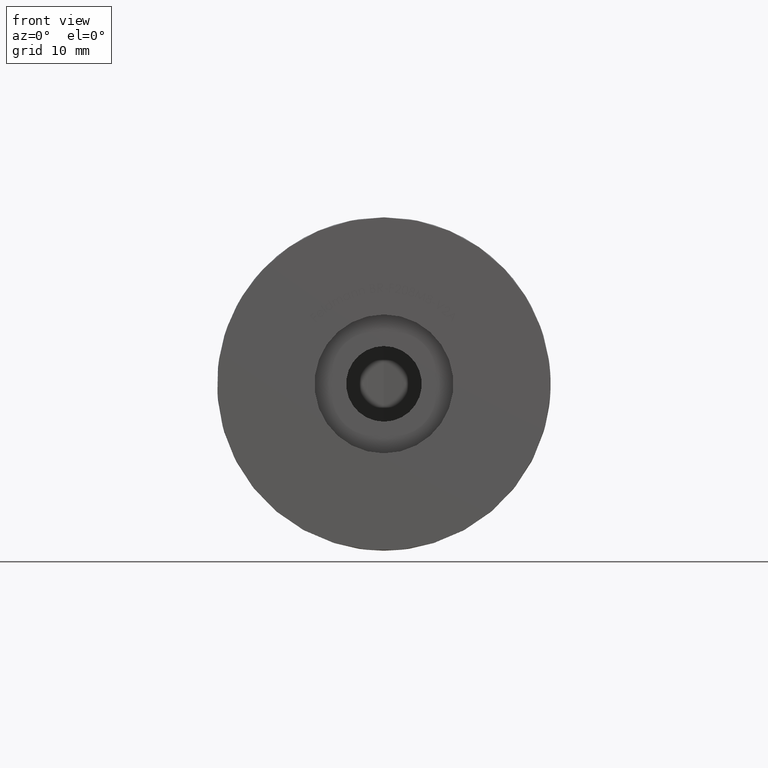
[diagram: clean part render]
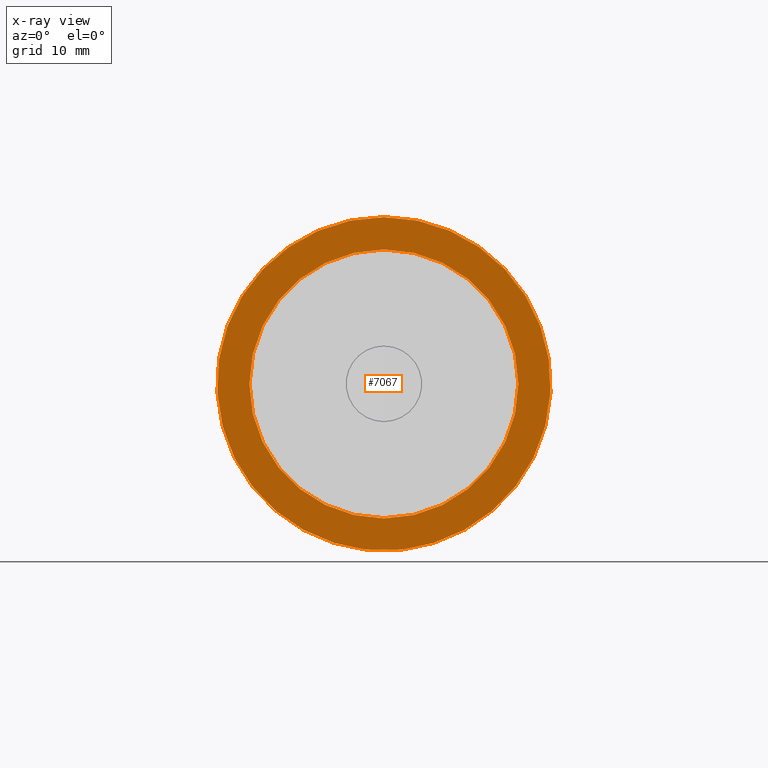
[diagram: x-ray — body ghosted, one internal face saturated and labeled with its STEP entity id]
A machine part, front view, then the same camera in x-ray: the body is ghosted and one INTERNAL B-rep face — a face not visible from any outside direction — is saturated and labeled: STEP entity #7067.
In plain terms, the highlighted planar face has unit normal (0, -1, 0).
Its self-contained STEP definition (entity closure, byte-faithful):
#30 = DIRECTION ( 'NONE',  ( 0.0000000000000000000, 0.0000000000000000000, 1.000000000000000000 ) ) ;
#1175 = CARTESIAN_POINT ( 'NONE',  ( 0.0000000000000000000, 12.69000000000000000, 0.0000000000000000000 ) ) ;
#1327 = VERTEX_POINT ( 'NONE', #9800 ) ;
#1655 = CARTESIAN_POINT ( 'NONE',  ( 0.0000000000000000000, 12.69000000000000000, 15.00000000000000000 ) ) ;
#2665 = AXIS2_PLACEMENT_3D ( 'NONE', #1175, #14365, #5248 ) ;
#5248 = DIRECTION ( 'NONE',  ( 0.0000000000000000000, -0.0000000000000000000, 1.000000000000000000 ) ) ;
#6022 = FACE_BOUND ( 'NONE', #10620, .T. ) ;
#6438 = FACE_OUTER_BOUND ( 'NONE', #9655, .T. ) ;
#6729 = DIRECTION ( 'NONE',  ( 0.0000000000000000000, 1.000000000000000000, 0.0000000000000000000 ) ) ;
#6730 = CARTESIAN_POINT ( 'NONE',  ( 0.0000000000000000000, 12.69000000000000000, 0.0000000000000000000 ) ) ;
#6843 = DIRECTION ( 'NONE',  ( 0.0000000000000000000, 0.0000000000000000000, 1.000000000000000000 ) ) ;
#6974 = AXIS2_PLACEMENT_3D ( 'NONE', #6730, #8078, #30 ) ;
#7067 = ADVANCED_FACE ( 'NONE', ( #6438, #6022 ), #15808, .T. ) ;
#7370 = EDGE_CURVE ( 'NONE', #1327, #1327, #12442, .T. ) ;
#8078 = DIRECTION ( 'NONE',  ( 0.0000000000000000000, 1.000000000000000000, 0.0000000000000000000 ) ) ;
#8681 = EDGE_CURVE ( 'NONE', #14728, #14728, #11053, .T. ) ;
#9655 = EDGE_LOOP ( 'NONE', ( #12038 ) ) ;
#9800 = CARTESIAN_POINT ( 'NONE',  ( 0.0000000000000000000, 12.69000000000000000, 12.10000000000000000 ) ) ;
#10620 = EDGE_LOOP ( 'NONE', ( #14126 ) ) ;
#11053 = CIRCLE ( 'NONE', #15797, 15.00000000000000000 ) ;
#12038 = ORIENTED_EDGE ( 'NONE', *, *, #8681, .T. ) ;
#12442 = CIRCLE ( 'NONE', #6974, 12.10000000000000000 ) ;
#14126 = ORIENTED_EDGE ( 'NONE', *, *, #7370, .F. ) ;
#14365 = DIRECTION ( 'NONE',  ( 0.0000000000000000000, 1.000000000000000000, 0.0000000000000000000 ) ) ;
#14728 = VERTEX_POINT ( 'NONE', #1655 ) ;
#15797 = AXIS2_PLACEMENT_3D ( 'NONE', #16209, #6729, #6843 ) ;
#15808 = PLANE ( 'NONE',  #2665 ) ;
#16209 = CARTESIAN_POINT ( 'NONE',  ( 0.0000000000000000000, 12.69000000000000000, 0.0000000000000000000 ) ) ;